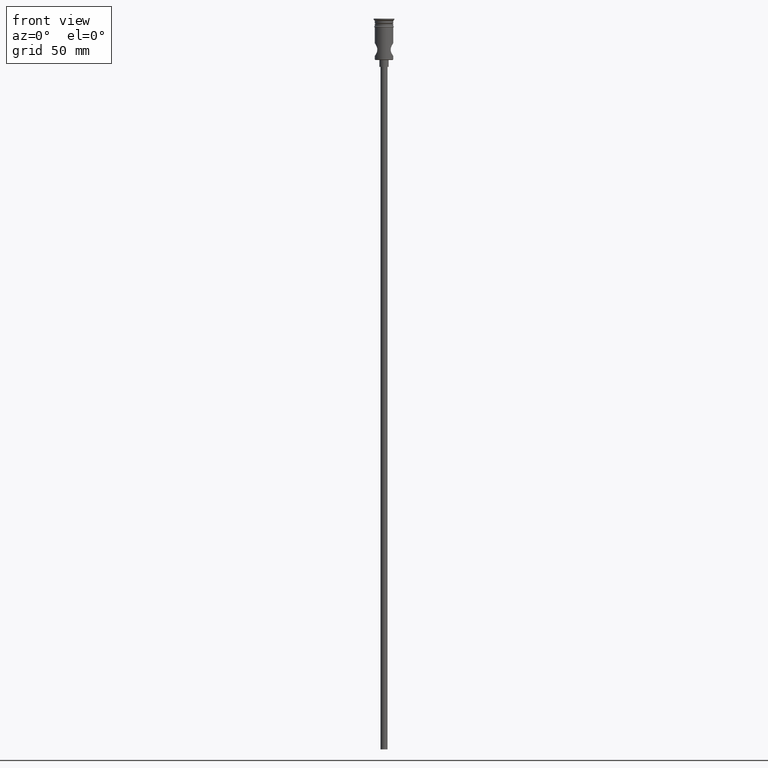
[diagram: clean part render]
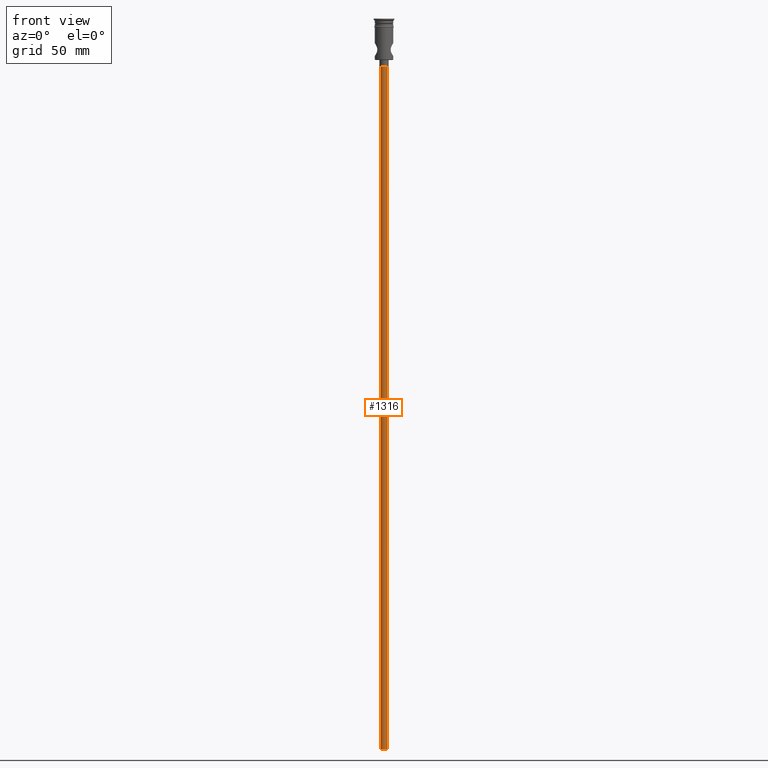
[diagram: same view with one face highlighted and labeled with its STEP entity id]
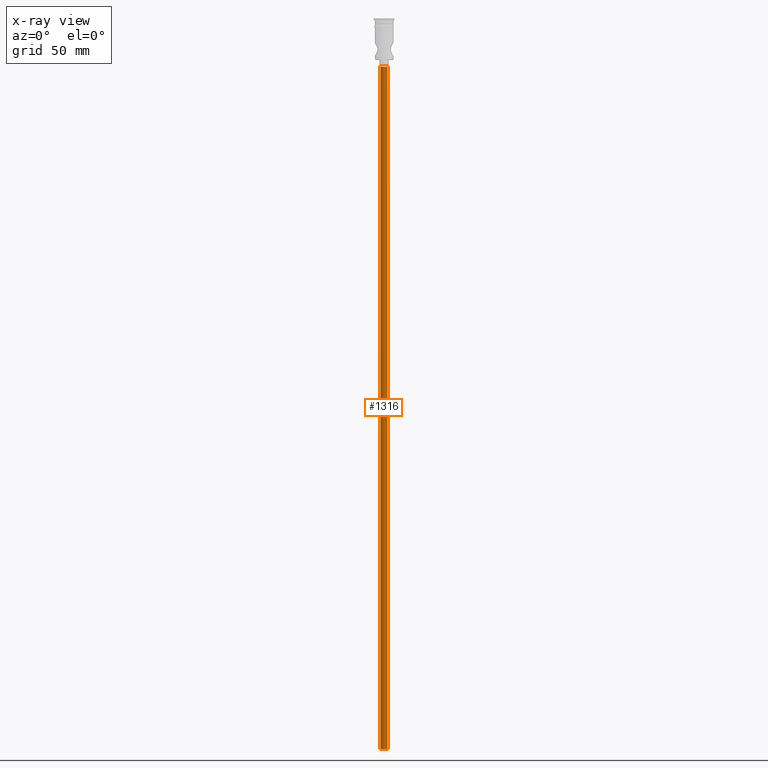
[diagram: x-ray of the same camera — body ghosted, the highlighted face saturated]
A machine part, front view. The second image highlights one B-rep face of the part: STEP entity #1316.
The next image is the same camera in x-ray: the body ghosted, the highlighted face saturated — about 0% of this face is hidden behind the body in this view.
In plain terms, the highlighted cylindrical surface (edge-blend (fillet) strip) has radius 1.5 mm, axis along (-0, -0, 1).
Its self-contained STEP definition (entity closure, byte-faithful):
#31 = CYLINDRICAL_SURFACE ( 'NONE', #1085, 1.500000000000000222 ) ;
#40 = CIRCLE ( 'NONE', #1145, 1.500000000000000222 ) ;
#48 = VERTEX_POINT ( 'NONE', #581 ) ;
#74 = EDGE_CURVE ( 'NONE', #247, #48, #563, .T. ) ;
#106 = LINE ( 'NONE', #741, #428 ) ;
#138 = CARTESIAN_POINT ( 'NONE',  ( 1.500000000000000222, 0.000000000000000000, -318.0000000000000000 ) ) ;
#192 = CARTESIAN_POINT ( 'NONE',  ( -1.500000000000000222, 1.836970198721030181E-16, -318.0000000000000000 ) ) ;
#209 = CARTESIAN_POINT ( 'NONE',  ( 0.000000000000000000, 0.000000000000000000, -20.99999999999999645 ) ) ;
#247 = VERTEX_POINT ( 'NONE', #1196 ) ;
#348 = ORIENTED_EDGE ( 'NONE', *, *, #74, .T. ) ;
#427 = DIRECTION ( 'NONE',  ( -0.000000000000000000, -0.000000000000000000, 1.000000000000000000 ) ) ;
#428 = VECTOR ( 'NONE', #427, 1000.000000000000000 ) ;
#452 = EDGE_CURVE ( 'NONE', #1205, #932, #40, .T. ) ;
#528 = EDGE_CURVE ( 'NONE', #932, #48, #106, .T. ) ;
#563 = CIRCLE ( 'NONE', #586, 1.500000000000000222 ) ;
#568 = DIRECTION ( 'NONE',  ( 0.000000000000000000, 0.000000000000000000, -1.000000000000000000 ) ) ;
#581 = CARTESIAN_POINT ( 'NONE',  ( -1.500000000000000222, 1.836970198721030181E-16, -20.99999999999999645 ) ) ;
#586 = AXIS2_PLACEMENT_3D ( 'NONE', #209, #568, #647 ) ;
#635 = CARTESIAN_POINT ( 'NONE',  ( 1.500000000000000222, 0.000000000000000000, -318.0000000000000000 ) ) ;
#647 = DIRECTION ( 'NONE',  ( -1.000000000000000000, 0.000000000000000000, 0.000000000000000000 ) ) ;
#711 = EDGE_CURVE ( 'NONE', #1205, #247, #1212, .T. ) ;
#741 = CARTESIAN_POINT ( 'NONE',  ( -1.500000000000000222, 1.836970198721030181E-16, -318.0000000000000000 ) ) ;
#777 = DIRECTION ( 'NONE',  ( -0.000000000000000000, -0.000000000000000000, 1.000000000000000000 ) ) ;
#932 = VERTEX_POINT ( 'NONE', #192 ) ;
#945 = DIRECTION ( 'NONE',  ( 0.000000000000000000, 0.000000000000000000, -1.000000000000000000 ) ) ;
#975 = ORIENTED_EDGE ( 'NONE', *, *, #452, .F. ) ;
#995 = CARTESIAN_POINT ( 'NONE',  ( 0.000000000000000000, 0.000000000000000000, -318.0000000000000000 ) ) ;
#1015 = DIRECTION ( 'NONE',  ( -0.000000000000000000, -0.000000000000000000, 1.000000000000000000 ) ) ;
#1085 = AXIS2_PLACEMENT_3D ( 'NONE', #995, #777, #1340 ) ;
#1091 = EDGE_LOOP ( 'NONE', ( #1103, #975, #1115, #348 ) ) ;
#1099 = FACE_OUTER_BOUND ( 'NONE', #1091, .T. ) ;
#1101 = VECTOR ( 'NONE', #1015, 1000.000000000000000 ) ;
#1103 = ORIENTED_EDGE ( 'NONE', *, *, #528, .F. ) ;
#1115 = ORIENTED_EDGE ( 'NONE', *, *, #711, .T. ) ;
#1138 = DIRECTION ( 'NONE',  ( -1.000000000000000000, 0.000000000000000000, 0.000000000000000000 ) ) ;
#1145 = AXIS2_PLACEMENT_3D ( 'NONE', #1273, #945, #1138 ) ;
#1196 = CARTESIAN_POINT ( 'NONE',  ( 1.500000000000000222, 0.000000000000000000, -20.99999999999999645 ) ) ;
#1205 = VERTEX_POINT ( 'NONE', #635 ) ;
#1212 = LINE ( 'NONE', #138, #1101 ) ;
#1273 = CARTESIAN_POINT ( 'NONE',  ( 0.000000000000000000, 0.000000000000000000, -318.0000000000000000 ) ) ;
#1316 = ADVANCED_FACE ( 'NONE', ( #1099 ), #31, .T. ) ;
#1340 = DIRECTION ( 'NONE',  ( 1.000000000000000000, 0.000000000000000000, 0.000000000000000000 ) ) ;